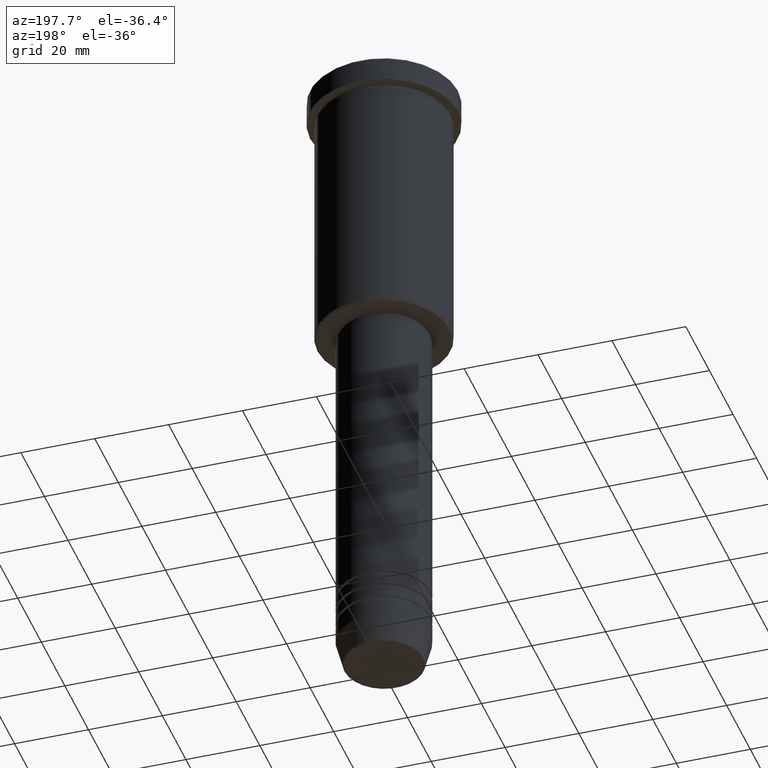
[diagram: clean part render]
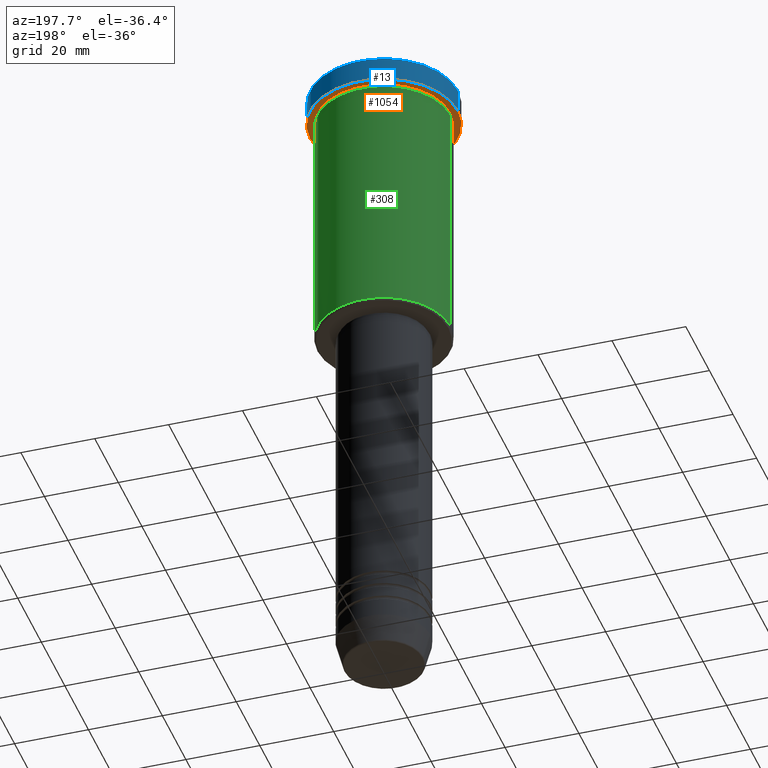
[diagram: same view with three faces highlighted in distinct colors, each labeled with its STEP entity id]
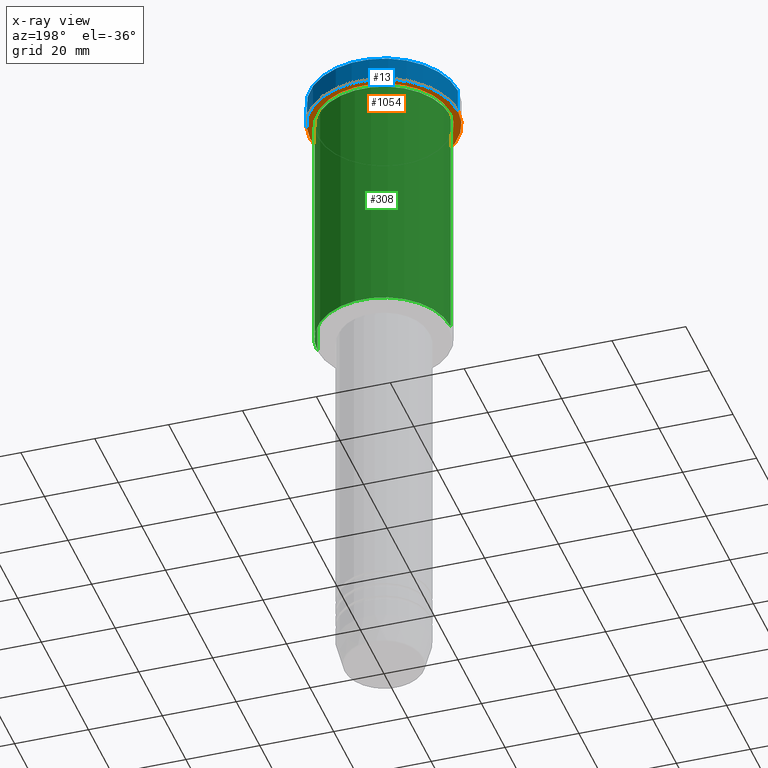
[diagram: x-ray of the same camera — body ghosted, the three highlighted faces saturated]
A machine part, auxiliary view with three faces highlighted in distinct colors.
The next image is the same camera in x-ray (body ghosted, the three faces saturated) — at least one of them is partly hidden behind the body in this view.
Their STEP definitions:

[orange] entity #1054 — the highlighted planar face has unit normal (0, 0, -1).
#80 = DIRECTION ( 'NONE',  ( 0.000000000000000000, 0.000000000000000000, -1.000000000000000000 ) ) ;
#134 = CIRCLE ( 'NONE', #315, 20.00000000000000000 ) ;
#148 = CARTESIAN_POINT ( 'NONE',  ( 0.000000000000000000, 0.000000000000000000, -6.999999999999995559 ) ) ;
#217 = CARTESIAN_POINT ( 'NONE',  ( -18.00000000000000000, 0.000000000000000000, -6.999999999999995559 ) ) ;
#219 = ORIENTED_EDGE ( 'NONE', *, *, #626, .T. ) ;
#233 = AXIS2_PLACEMENT_3D ( 'NONE', #148, #530, #1064 ) ;
#292 = AXIS2_PLACEMENT_3D ( 'NONE', #310, #837, #376 ) ;
#310 = CARTESIAN_POINT ( 'NONE',  ( 0.000000000000000000, 0.000000000000000000, -6.999999999999995559 ) ) ;
#315 = AXIS2_PLACEMENT_3D ( 'NONE', #1075, #896, #1163 ) ;
#316 = CIRCLE ( 'NONE', #233, 18.00000000000000000 ) ;
#324 = ORIENTED_EDGE ( 'NONE', *, *, #517, .F. ) ;
#357 = EDGE_CURVE ( 'NONE', #1028, #468, #577, .T. ) ;
#375 = EDGE_LOOP ( 'NONE', ( #836, #324 ) ) ;
#376 = DIRECTION ( 'NONE',  ( 1.000000000000000000, 0.000000000000000000, 0.000000000000000000 ) ) ;
#382 = FACE_OUTER_BOUND ( 'NONE', #375, .T. ) ;
#459 = VERTEX_POINT ( 'NONE', #217 ) ;
#468 = VERTEX_POINT ( 'NONE', #1051 ) ;
#512 = EDGE_LOOP ( 'NONE', ( #219, #810 ) ) ;
#517 = EDGE_CURVE ( 'NONE', #468, #1028, #134, .T. ) ;
#530 = DIRECTION ( 'NONE',  ( -0.000000000000000000, -0.000000000000000000, 1.000000000000000000 ) ) ;
#551 = PLANE ( 'NONE',  #873 ) ;
#577 = CIRCLE ( 'NONE', #292, 20.00000000000000000 ) ;
#603 = DIRECTION ( 'NONE',  ( -0.000000000000000000, -0.000000000000000000, 1.000000000000000000 ) ) ;
#626 = EDGE_CURVE ( 'NONE', #459, #859, #871, .T. ) ;
#635 = FACE_BOUND ( 'NONE', #512, .T. ) ;
#644 = CARTESIAN_POINT ( 'NONE',  ( 20.00000000000000000, 0.000000000000000000, -6.999999999999995559 ) ) ;
#810 = ORIENTED_EDGE ( 'NONE', *, *, #967, .T. ) ;
#824 = CARTESIAN_POINT ( 'NONE',  ( 18.00000000000000000, 2.204364238465235428E-15, -6.999999999999995559 ) ) ;
#827 = CARTESIAN_POINT ( 'NONE',  ( 0.000000000000000000, 20.00000000000000000, -6.999999999999995559 ) ) ;
#836 = ORIENTED_EDGE ( 'NONE', *, *, #357, .F. ) ;
#837 = DIRECTION ( 'NONE',  ( -0.000000000000000000, -0.000000000000000000, 1.000000000000000000 ) ) ;
#859 = VERTEX_POINT ( 'NONE', #824 ) ;
#871 = CIRCLE ( 'NONE', #953, 18.00000000000000000 ) ;
#873 = AXIS2_PLACEMENT_3D ( 'NONE', #827, #80, #1178 ) ;
#896 = DIRECTION ( 'NONE',  ( -0.000000000000000000, -0.000000000000000000, 1.000000000000000000 ) ) ;
#953 = AXIS2_PLACEMENT_3D ( 'NONE', #1146, #603, #1056 ) ;
#967 = EDGE_CURVE ( 'NONE', #859, #459, #316, .T. ) ;
#1028 = VERTEX_POINT ( 'NONE', #644 ) ;
#1051 = CARTESIAN_POINT ( 'NONE',  ( -20.00000000000000000, 2.449293598294706513E-15, -6.999999999999995559 ) ) ;
#1054 = ADVANCED_FACE ( 'NONE', ( #635, #382 ), #551, .T. ) ;
#1056 = DIRECTION ( 'NONE',  ( -1.000000000000000000, 0.000000000000000000, 0.000000000000000000 ) ) ;
#1064 = DIRECTION ( 'NONE',  ( -1.000000000000000000, 0.000000000000000000, 0.000000000000000000 ) ) ;
#1075 = CARTESIAN_POINT ( 'NONE',  ( 0.000000000000000000, 0.000000000000000000, -6.999999999999995559 ) ) ;
#1146 = CARTESIAN_POINT ( 'NONE',  ( 0.000000000000000000, 0.000000000000000000, -6.999999999999995559 ) ) ;
#1163 = DIRECTION ( 'NONE',  ( 1.000000000000000000, 0.000000000000000000, 0.000000000000000000 ) ) ;
#1178 = DIRECTION ( 'NONE',  ( -1.000000000000000000, 0.000000000000000000, -0.000000000000000000 ) ) ;

[blue] entity #13 — the highlighted cylindrical surface (partial cylindrical patch) has radius 20 mm, axis along (-0, -0, 1).
#13 = ADVANCED_FACE ( 'NONE', ( #278 ), #637, .T. ) ;
#29 = EDGE_LOOP ( 'NONE', ( #707, #165, #569, #301 ) ) ;
#165 = ORIENTED_EDGE ( 'NONE', *, *, #400, .T. ) ;
#174 = VECTOR ( 'NONE', #273, 1000.000000000000000 ) ;
#178 = CARTESIAN_POINT ( 'NONE',  ( 0.000000000000000000, 0.000000000000000000, 0.000000000000000000 ) ) ;
#202 = DIRECTION ( 'NONE',  ( 1.000000000000000000, 0.000000000000000000, 0.000000000000000000 ) ) ;
#244 = EDGE_CURVE ( 'NONE', #1028, #653, #419, .T. ) ;
#273 = DIRECTION ( 'NONE',  ( -0.000000000000000000, -0.000000000000000000, 1.000000000000000000 ) ) ;
#278 = FACE_OUTER_BOUND ( 'NONE', #29, .T. ) ;
#292 = AXIS2_PLACEMENT_3D ( 'NONE', #310, #837, #376 ) ;
#301 = ORIENTED_EDGE ( 'NONE', *, *, #244, .F. ) ;
#310 = CARTESIAN_POINT ( 'NONE',  ( 0.000000000000000000, 0.000000000000000000, -6.999999999999995559 ) ) ;
#335 = DIRECTION ( 'NONE',  ( -0.000000000000000000, -0.000000000000000000, 1.000000000000000000 ) ) ;
#357 = EDGE_CURVE ( 'NONE', #1028, #468, #577, .T. ) ;
#361 = CARTESIAN_POINT ( 'NONE',  ( 20.00000000000000000, 0.000000000000000000, 0.000000000000000000 ) ) ;
#376 = DIRECTION ( 'NONE',  ( 1.000000000000000000, 0.000000000000000000, 0.000000000000000000 ) ) ;
#386 = DIRECTION ( 'NONE',  ( 0.000000000000000000, 0.000000000000000000, -1.000000000000000000 ) ) ;
#400 = EDGE_CURVE ( 'NONE', #468, #906, #977, .T. ) ;
#419 = LINE ( 'NONE', #361, #174 ) ;
#468 = VERTEX_POINT ( 'NONE', #1051 ) ;
#503 = CARTESIAN_POINT ( 'NONE',  ( -20.00000000000000000, 2.449293598294706513E-15, 0.000000000000000000 ) ) ;
#560 = DIRECTION ( 'NONE',  ( -0.000000000000000000, -0.000000000000000000, 1.000000000000000000 ) ) ;
#569 = ORIENTED_EDGE ( 'NONE', *, *, #1153, .T. ) ;
#577 = CIRCLE ( 'NONE', #292, 20.00000000000000000 ) ;
#624 = CIRCLE ( 'NONE', #678, 20.00000000000000000 ) ;
#637 = CYLINDRICAL_SURFACE ( 'NONE', #688, 20.00000000000000000 ) ;
#644 = CARTESIAN_POINT ( 'NONE',  ( 20.00000000000000000, 0.000000000000000000, -6.999999999999995559 ) ) ;
#653 = VERTEX_POINT ( 'NONE', #864 ) ;
#678 = AXIS2_PLACEMENT_3D ( 'NONE', #878, #386, #861 ) ;
#688 = AXIS2_PLACEMENT_3D ( 'NONE', #178, #560, #202 ) ;
#707 = ORIENTED_EDGE ( 'NONE', *, *, #357, .T. ) ;
#837 = DIRECTION ( 'NONE',  ( -0.000000000000000000, -0.000000000000000000, 1.000000000000000000 ) ) ;
#861 = DIRECTION ( 'NONE',  ( 1.000000000000000000, 0.000000000000000000, 0.000000000000000000 ) ) ;
#864 = CARTESIAN_POINT ( 'NONE',  ( 20.00000000000000000, 0.000000000000000000, -0.4999999999999970024 ) ) ;
#878 = CARTESIAN_POINT ( 'NONE',  ( 0.000000000000000000, 0.000000000000000000, -0.4999999999999970024 ) ) ;
#906 = VERTEX_POINT ( 'NONE', #930 ) ;
#930 = CARTESIAN_POINT ( 'NONE',  ( -20.00000000000000000, 2.449293598294706513E-15, -0.4999999999999970024 ) ) ;
#977 = LINE ( 'NONE', #503, #1007 ) ;
#1007 = VECTOR ( 'NONE', #335, 1000.000000000000000 ) ;
#1028 = VERTEX_POINT ( 'NONE', #644 ) ;
#1051 = CARTESIAN_POINT ( 'NONE',  ( -20.00000000000000000, 2.449293598294706513E-15, -6.999999999999995559 ) ) ;
#1153 = EDGE_CURVE ( 'NONE', #906, #653, #624, .T. ) ;

[green] entity #308 — the highlighted cylindrical surface (partial cylindrical patch) has radius 18 mm, axis along (-0, -0, 1).
#12 = DIRECTION ( 'NONE',  ( -0.000000000000000000, -0.000000000000000000, 1.000000000000000000 ) ) ;
#66 = EDGE_CURVE ( 'NONE', #149, #251, #130, .T. ) ;
#81 = DIRECTION ( 'NONE',  ( -0.000000000000000000, -0.000000000000000000, 1.000000000000000000 ) ) ;
#102 = EDGE_LOOP ( 'NONE', ( #784, #1162, #1156, #491 ) ) ;
#130 = CIRCLE ( 'NONE', #806, 18.00000000000000000 ) ;
#149 = VERTEX_POINT ( 'NONE', #753 ) ;
#186 = DIRECTION ( 'NONE',  ( -0.000000000000000000, -0.000000000000000000, 1.000000000000000000 ) ) ;
#225 = EDGE_CURVE ( 'NONE', #414, #1164, #1115, .T. ) ;
#239 = CARTESIAN_POINT ( 'NONE',  ( 18.00000000000000000, 0.000000000000000000, -75.50000000000001421 ) ) ;
#251 = VERTEX_POINT ( 'NONE', #691 ) ;
#266 = CARTESIAN_POINT ( 'NONE',  ( 0.000000000000000000, 0.000000000000000000, -75.50000000000001421 ) ) ;
#293 = EDGE_CURVE ( 'NONE', #414, #149, #469, .T. ) ;
#300 = FACE_OUTER_BOUND ( 'NONE', #102, .T. ) ;
#308 = ADVANCED_FACE ( 'NONE', ( #300 ), #389, .T. ) ;
#389 = CYLINDRICAL_SURFACE ( 'NONE', #904, 18.00000000000000000 ) ;
#391 = CARTESIAN_POINT ( 'NONE',  ( -18.00000000000000000, 2.204364238465235428E-15, -75.50000000000001421 ) ) ;
#414 = VERTEX_POINT ( 'NONE', #239 ) ;
#455 = DIRECTION ( 'NONE',  ( 1.000000000000000000, 0.000000000000000000, 0.000000000000000000 ) ) ;
#466 = CARTESIAN_POINT ( 'NONE',  ( 0.000000000000000000, 0.000000000000000000, -7.999999999999996447 ) ) ;
#469 = LINE ( 'NONE', #842, #728 ) ;
#491 = ORIENTED_EDGE ( 'NONE', *, *, #293, .F. ) ;
#542 = DIRECTION ( 'NONE',  ( -0.000000000000000000, -0.000000000000000000, 1.000000000000000000 ) ) ;
#556 = DIRECTION ( 'NONE',  ( 1.000000000000000000, 0.000000000000000000, 0.000000000000000000 ) ) ;
#612 = DIRECTION ( 'NONE',  ( -1.000000000000000000, 0.000000000000000000, 0.000000000000000000 ) ) ;
#613 = DIRECTION ( 'NONE',  ( -0.000000000000000000, -0.000000000000000000, 1.000000000000000000 ) ) ;
#660 = CARTESIAN_POINT ( 'NONE',  ( 0.000000000000000000, 0.000000000000000000, 0.000000000000000000 ) ) ;
#673 = AXIS2_PLACEMENT_3D ( 'NONE', #266, #542, #612 ) ;
#691 = CARTESIAN_POINT ( 'NONE',  ( -18.00000000000000000, 2.204364238465235428E-15, -7.999999999999996447 ) ) ;
#728 = VECTOR ( 'NONE', #186, 1000.000000000000000 ) ;
#753 = CARTESIAN_POINT ( 'NONE',  ( 18.00000000000000000, 0.000000000000000000, -7.999999999999996447 ) ) ;
#784 = ORIENTED_EDGE ( 'NONE', *, *, #225, .T. ) ;
#806 = AXIS2_PLACEMENT_3D ( 'NONE', #466, #81, #455 ) ;
#817 = LINE ( 'NONE', #1172, #1167 ) ;
#842 = CARTESIAN_POINT ( 'NONE',  ( 18.00000000000000000, 0.000000000000000000, 0.000000000000000000 ) ) ;
#904 = AXIS2_PLACEMENT_3D ( 'NONE', #660, #12, #556 ) ;
#941 = EDGE_CURVE ( 'NONE', #1164, #251, #817, .T. ) ;
#1115 = CIRCLE ( 'NONE', #673, 18.00000000000000000 ) ;
#1156 = ORIENTED_EDGE ( 'NONE', *, *, #66, .F. ) ;
#1162 = ORIENTED_EDGE ( 'NONE', *, *, #941, .T. ) ;
#1164 = VERTEX_POINT ( 'NONE', #391 ) ;
#1167 = VECTOR ( 'NONE', #613, 1000.000000000000000 ) ;
#1172 = CARTESIAN_POINT ( 'NONE',  ( -18.00000000000000000, 2.204364238465235428E-15, 0.000000000000000000 ) ) ;